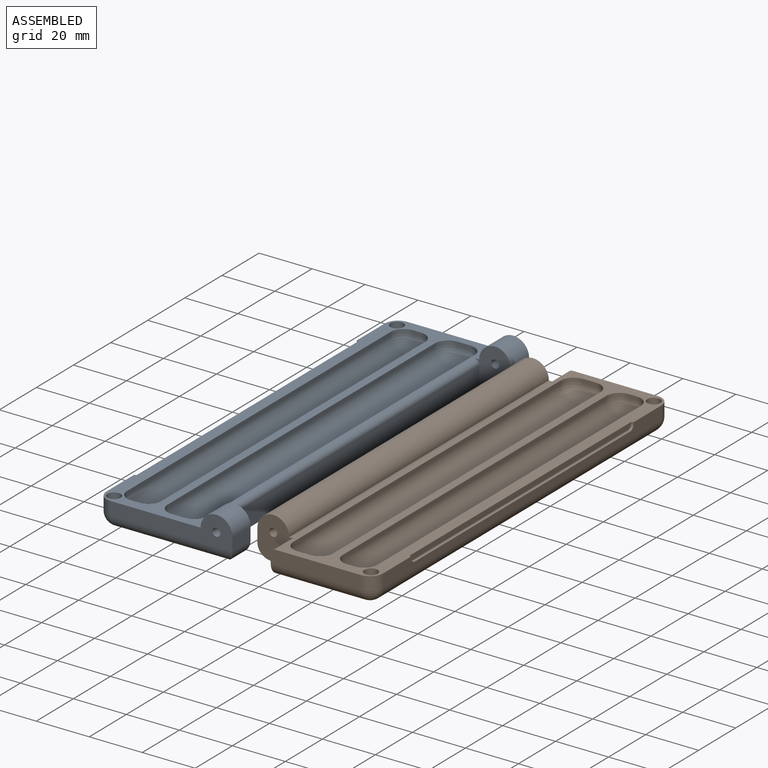
[diagram: assembled view]
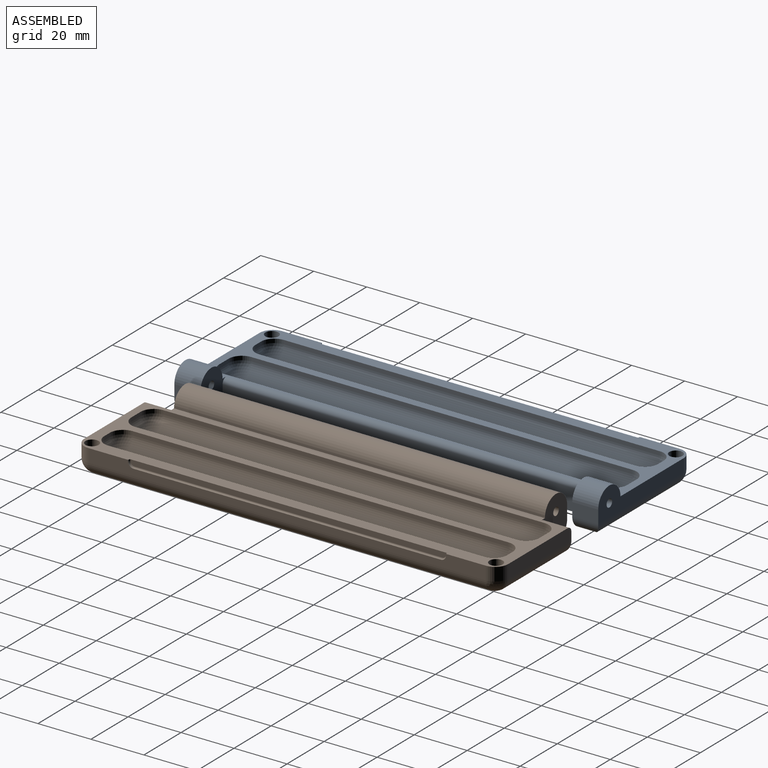
[diagram: assembled view, second angle]
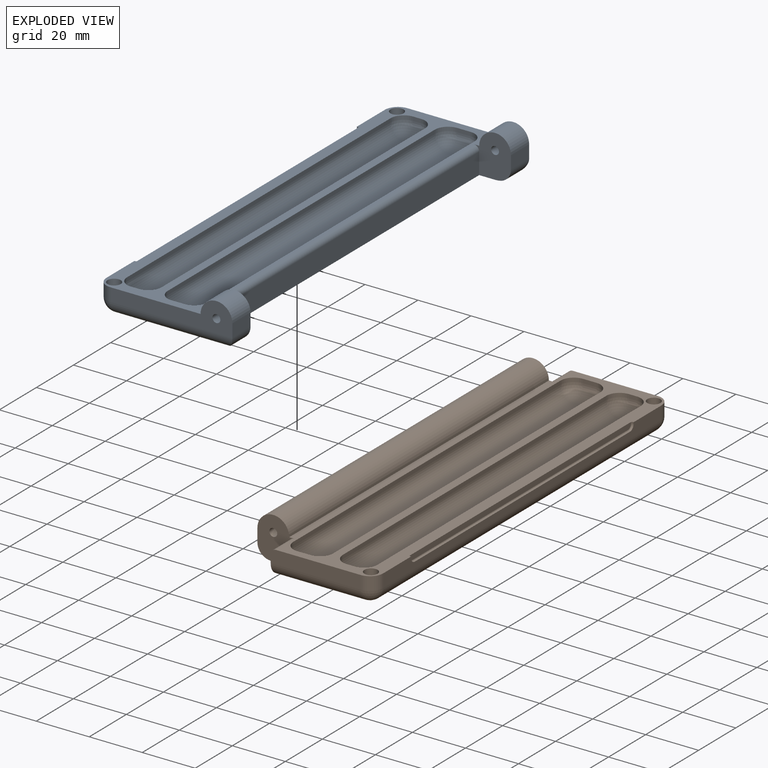
[diagram: exploded view]
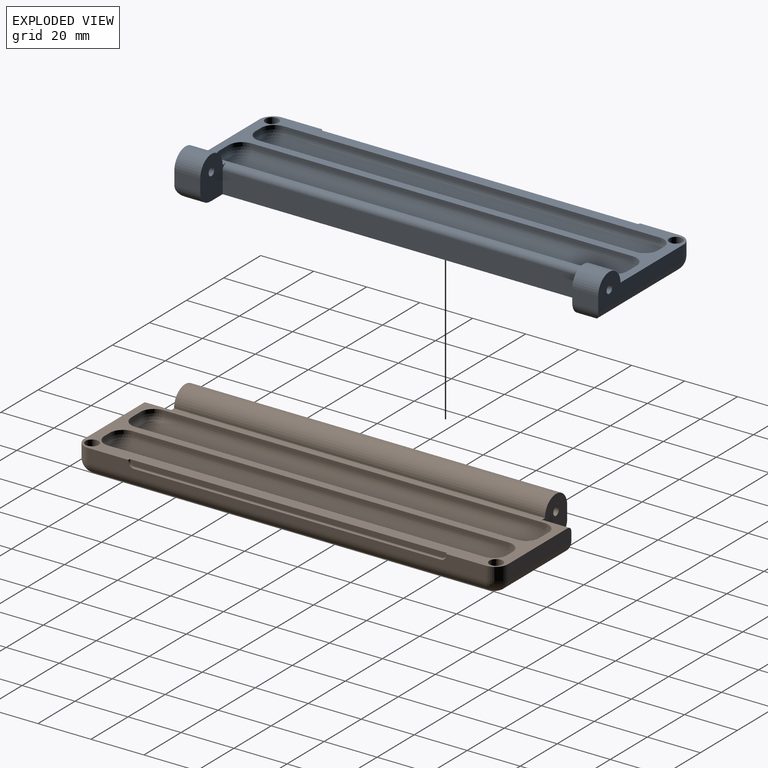
[diagram: exploded view, second angle]
ASSEMBLY  parts=2 mates=2
PART A: 75 faces, bbox 51.1x160x16 mm
  f0: plane 160x39mm, normal (0,0,-1), area 1576.2mm2, adj f1,f3,f5,f6,f7,f9,f10,f11
  f1: plane 150x5mm, normal (1,0,0), area 451.7mm2, adj f0,f55,f60,f61,f62,f63,f64,f71
  f2: cylinder r=10mm len=6.21mm, axis (0,-1,0), area 11.1mm2, adj f5,f8,f54,f57
  f3: plane 46x11mm, normal (0,-1,0), area 279.5mm2, adj f0,f48,f50,f51,f56,f58,f73
  f4: cylinder r=10mm len=6.21mm, axis (0,-1,0), area 11.1mm2, adj f6,f8,f56,f58
  f5: plane 16x14mm, normal (0,-1,0), area 164.5mm2, adj f0,f2,f8,f47,f49,f52,f53,f57
  f6: plane 16x14mm, normal (0,1,0), area 164.5mm2, adj f0,f4,f8,f47,f48,f50,f51,f58
  f7: plane 46x11mm, normal (0,1,0), area 279.5mm2, adj f0,f49,f52,f53,f54,f57,f71
  f8: plane 150x40mm, normal (0,0,1), area 5157.6mm2, adj f2,f4,f5,f6,f47,f54,f55,f56
  f9: plane 3x1.5mm, normal (0,-1,0), area 4.5mm2, adj f0,f21,f27,f30
  f10: plane 142x1.5mm, normal (1,0,0), area 213mm2, adj f0,f24,f28,f30
  f11: plane 3x1.5mm, normal (0,1,0), area 4.5mm2, adj f0,f19,f23,f24
  f12: plane 142x1.5mm, normal (-1,0,0), area 213mm2, adj f0,f19,f21,f22
  f13: plane 142x3mm, normal (0,0,-1), area 426mm2, adj f22,f23,f27,f28
  f14: plane 5x1.5mm, normal (0,-1,0), area 7.5mm2, adj f0,f36,f40,f42
  f15: plane 144x1.5mm, normal (1,0,0), area 216mm2, adj f0,f31,f35,f36
  f16: plane 5x1.5mm, normal (0,1,0), area 7.5mm2, adj f0,f31,f33,f34
  f17: plane 144x1.5mm, normal (-1,0,0), area 216mm2, adj f0,f33,f39,f42
  f18: plane 144x5mm, normal (0,0,-1), area 720mm2, adj f34,f35,f39,f40
  f19: cylinder r=5mm len=5mm, axis (0,0,-1), area 11.8mm2, adj f0,f11,f12,f20
  f20: sphere r=5mm, area 39.3mm2, adj f19,f22,f23
  f21: cylinder r=5mm len=5mm, axis (0,0,1), area 11.8mm2, adj f0,f9,f12,f25
  f22: cylinder r=5mm len=142mm, axis (0,1,0), area 1115.3mm2, adj f12,f13,f20,f25
  f23: cylinder r=5mm len=5mm, axis (1,0,0), area 23.6mm2, adj f11,f13,f20,f26
  f24: cylinder r=5mm len=5mm, axis (0,0,1), area 11.8mm2, adj f0,f10,f11,f26
  f25: sphere r=5mm, area 39.3mm2, adj f21,f22,f27
  f26: sphere r=5mm, area 39.3mm2, adj f23,f24,f28
  f27: cylinder r=5mm len=5mm, axis (-1,0,0), area 23.6mm2, adj f9,f13,f25,f29
  f28: cylinder r=5mm len=142mm, axis (0,-1,0), area 1115.3mm2, adj f10,f13,f26,f29
  f29: sphere r=5mm, area 39.3mm2, adj f27,f28,f30
  f30: cylinder r=5mm len=5mm, axis (0,0,-1), area 11.8mm2, adj f0,f9,f10,f29
  f31: cylinder r=5mm len=5mm, axis (0,0,1), area 11.8mm2, adj f0,f15,f16,f32
  f32: sphere r=5mm, area 39.3mm2, adj f31,f34,f35
  f33: cylinder r=5mm len=5mm, axis (0,0,-1), area 11.8mm2, adj f0,f16,f17,f37
  f34: cylinder r=5mm len=5mm, axis (1,0,0), area 39.3mm2, adj f16,f18,f32,f37
  f35: cylinder r=5mm len=144mm, axis (0,-1,0), area 1131mm2, adj f15,f18,f32,f38
  f36: cylinder r=5mm len=5mm, axis (0,0,-1), area 11.8mm2, adj f0,f14,f15,f38
  f37: sphere r=5mm, area 39.3mm2, adj f33,f34,f39
  f38: sphere r=5mm, area 39.3mm2, adj f35,f36,f40
  f39: cylinder r=5mm len=144mm, axis (0,1,0), area 1131mm2, adj f17,f18,f37,f41
  f40: cylinder r=5mm len=5mm, axis (-1,0,0), area 39.3mm2, adj f14,f18,f38,f41
  f41: sphere r=5mm, area 39.3mm2, adj f39,f40,f42
  f42: cylinder r=5mm len=5mm, axis (0,0,1), area 11.8mm2, adj f0,f14,f17,f41
  f43: cylinder r=2.5mm len=5mm, axis (0,0,-1), area 50.3mm2, adj f0,f44
  f44: plane 5x5mm, normal (0,0,-1), area 19.6mm2, adj f43
  f45: cylinder r=2.5mm len=5mm, axis (0,0,-1), area 50.3mm2, adj f0,f46
  f46: plane 5x5mm, normal (0,0,-1), area 19.6mm2, adj f45
  f47: plane 140.4x8mm, normal (-1,0,0), area 1123.2mm2, adj f5,f6,f8,f59
  f48: cylinder r=1.5mm len=9.8mm, axis (0,-1,0), area 92.4mm2, adj f3,f6
  f49: cylinder r=1.5mm len=9.8mm, axis (0,-1,0), area 92.4mm2, adj f5,f7
  f50: plane 9.8x4.9mm, normal (-1,0,0), area 48mm2, adj f3,f6,f51,f58
  f51: cylinder r=6mm len=12mm, axis (0,-1,0), area 184.7mm2, adj f0,f3,f6,f50
  f52: cylinder r=6mm len=12mm, axis (0,-1,0), area 184.7mm2, adj f0,f5,f7,f53
  f53: plane 9.8x4.9mm, normal (-1,0,0), area 48mm2, adj f5,f7,f52,f57
  f54: cylinder r=5mm len=46mm, axis (-1,0,0), area 345.3mm2, adj f2,f7,f8,f57,f72
  f55: cylinder r=5mm len=150mm, axis (0,1,0), area 1178.1mm2, adj f1,f8,f72,f74
  f56: cylinder r=5mm len=46mm, axis (1,0,0), area 345.3mm2, adj f3,f4,f8,f58,f74
  f57: cylinder r=5mm len=9.8mm, axis (0,-1,0), area 58.1mm2, adj f2,f5,f7,f53,f54
  f58: cylinder r=5mm len=9.8mm, axis (0,-1,0), area 58.1mm2, adj f3,f4,f6,f50,f56
  f59: cylinder r=2mm len=140.4mm, axis (0,-1,0), area 441.1mm2, adj f0,f5,f6,f47
  f60: plane 0.5x0.25mm, normal (0,1,0), area 0.1mm2, adj f0,f1,f64,f70
  f61: plane 0.5x0.25mm, normal (0,-1,0), area 0.1mm2, adj f0,f1,f62,f66
  f62: cylinder r=2mm len=2mm, axis (1,0,0), area 0.8mm2, adj f1,f61,f63,f67
  f63: plane 116x0.25mm, normal (0,0,-1), area 29mm2, adj f1,f62,f64,f68
  f64: cylinder r=2mm len=2mm, axis (1,0,0), area 0.8mm2, adj f1,f60,f63,f69
  f65: plane 119x2mm, normal (1,0,0), area 237mm2, adj f0,f66,f67,f68,f69,f70
  f66: cylinder r=0.5mm len=0.5mm, axis (0,0,1), area 0.4mm2, adj f0,f61,f65,f67
  f67: torus R=1.5mm, axis (1,0,0), area 2.2mm2, adj f62,f65,f66,f68
  f68: cylinder r=0.5mm len=116mm, axis (0,-1,0), area 91.1mm2, adj f63,f65,f67,f69
  f69: torus R=1.5mm, axis (1,0,0), area 2.2mm2, adj f64,f65,f68,f70
  f70: cylinder r=0.5mm len=0.5mm, axis (0,0,-1), area 0.4mm2, adj f0,f60,f65,f69
  f71: cylinder r=5mm len=5mm, axis (0,0,-1), area 39.3mm2, adj f0,f1,f7,f72
  f72: sphere r=5mm, area 39.3mm2, adj f54,f55,f71
  f73: cylinder r=5mm len=5mm, axis (0,0,1), area 39.3mm2, adj f0,f1,f3,f74
  f74: sphere r=5mm, area 39.3mm2, adj f55,f56,f73
PART B: 72 faces, bbox 51.1x160x16 mm
  f0: plane 160x39mm, normal (0,0,1), area 1817mm2, adj f1,f4,f5,f6,f7,f8,f9,f11
  f1: plane 150x5mm, normal (1,0,0), area 451.7mm2, adj f0,f52,f57,f58,f59,f60,f61,f68
  f2: plane 150x40mm, normal (0,0,-1), area 5940mm2, adj f3,f44,f45,f46,f47,f51,f52,f53
  f3: cylinder r=10mm len=140mm, axis (0,-1,0), area 281.9mm2, adj f2,f45,f47,f54
  f4: plane 34x5mm, normal (0,1,0), area 169.1mm2, adj f0,f46,f53,f56,f68
  f5: plane 34x5mm, normal (0,-1,0), area 169.1mm2, adj f0,f44,f51,f55,f70
  f6: plane 3x1.5mm, normal (0,-1,0), area 4.5mm2, adj f0,f18,f24,f27
  f7: plane 142x1.5mm, normal (1,0,0), area 213mm2, adj f0,f21,f25,f27
  f8: plane 3x1.5mm, normal (0,1,0), area 4.5mm2, adj f0,f16,f20,f21
  f9: plane 142x1.5mm, normal (-1,0,0), area 213mm2, adj f0,f16,f18,f19
  f10: plane 142x3mm, normal (0,0,1), area 426mm2, adj f19,f20,f24,f25
  f11: plane 5x1.5mm, normal (0,-1,0), area 7.5mm2, adj f0,f33,f37,f39
  f12: plane 144x1.5mm, normal (1,0,0), area 216mm2, adj f0,f28,f32,f33
  f13: plane 5x1.5mm, normal (0,1,0), area 7.5mm2, adj f0,f28,f30,f31
  f14: plane 144x1.5mm, normal (-1,0,0), area 216mm2, adj f0,f30,f36,f39
  f15: plane 144x5mm, normal (0,0,1), area 720mm2, adj f31,f32,f36,f37
  f16: cylinder r=5mm len=5mm, axis (0,0,1), area 11.8mm2, adj f0,f8,f9,f17
  f17: sphere r=5mm, area 39.3mm2, adj f16,f19,f20
  f18: cylinder r=5mm len=5mm, axis (0,0,-1), area 11.8mm2, adj f0,f6,f9,f22
  f19: cylinder r=5mm len=142mm, axis (0,1,0), area 1115.3mm2, adj f9,f10,f17,f22
  f20: cylinder r=5mm len=5mm, axis (1,0,0), area 23.6mm2, adj f8,f10,f17,f23
  f21: cylinder r=5mm len=5mm, axis (0,0,-1), area 11.8mm2, adj f0,f7,f8,f23
  f22: sphere r=5mm, area 39.3mm2, adj f18,f19,f24
  f23: sphere r=5mm, area 39.3mm2, adj f20,f21,f25
  f24: cylinder r=5mm len=5mm, axis (-1,0,0), area 23.6mm2, adj f6,f10,f22,f26
  f25: cylinder r=5mm len=142mm, axis (0,-1,0), area 1115.3mm2, adj f7,f10,f23,f26
  f26: sphere r=5mm, area 39.3mm2, adj f24,f25,f27
  f27: cylinder r=5mm len=5mm, axis (0,0,1), area 11.8mm2, adj f0,f6,f7,f26
  f28: cylinder r=5mm len=5mm, axis (0,0,-1), area 11.8mm2, adj f0,f12,f13,f29
  f29: sphere r=5mm, area 39.3mm2, adj f28,f31,f32
  f30: cylinder r=5mm len=5mm, axis (0,0,1), area 11.8mm2, adj f0,f13,f14,f34
  f31: cylinder r=5mm len=5mm, axis (1,0,0), area 39.3mm2, adj f13,f15,f29,f34
  f32: cylinder r=5mm len=144mm, axis (0,-1,0), area 1131mm2, adj f12,f15,f29,f35
  f33: cylinder r=5mm len=5mm, axis (0,0,1), area 11.8mm2, adj f0,f11,f12,f35
  f34: sphere r=5mm, area 39.3mm2, adj f30,f31,f36
  f35: sphere r=5mm, area 39.3mm2, adj f32,f33,f37
  f36: cylinder r=5mm len=144mm, axis (0,1,0), area 1131mm2, adj f14,f15,f34,f38
  f37: cylinder r=5mm len=5mm, axis (-1,0,0), area 39.3mm2, adj f11,f15,f35,f38
  f38: sphere r=5mm, area 39.3mm2, adj f36,f37,f39
  f39: cylinder r=5mm len=5mm, axis (0,0,-1), area 11.8mm2, adj f0,f11,f14,f38
  f40: cylinder r=2.5mm len=5mm, axis (0,0,1), area 50.3mm2, adj f0,f41
  f41: plane 5x5mm, normal (0,0,1), area 19.6mm2, adj f40
  f42: cylinder r=2.5mm len=5mm, axis (0,0,1), area 50.3mm2, adj f0,f43
  f43: plane 5x5mm, normal (0,0,1), area 19.6mm2, adj f42
  f44: plane 10x8mm, normal (-1,0,0), area 74.6mm2, adj f2,f5,f45,f51,f55
  f45: plane 16x14mm, normal (0,-1,0), area 164.5mm2, adj f0,f2,f3,f44,f48,f49,f50,f54
  f46: plane 10x8mm, normal (-1,0,0), area 74.6mm2, adj f2,f4,f47,f53,f56
  f47: plane 16x14mm, normal (0,1,0), area 164.5mm2, adj f0,f2,f3,f46,f48,f49,f50,f54
  f48: cylinder r=1.5mm len=140mm, axis (0,-1,0), area 1319.5mm2, adj f45,f47
  f49: cylinder r=6mm len=140mm, axis (0,-1,0), area 2638.9mm2, adj f0,f45,f47,f50
  f50: plane 140x4.9mm, normal (-1,0,0), area 685.9mm2, adj f45,f47,f49,f54
  f51: cylinder r=5mm len=34mm, axis (1,0,0), area 267mm2, adj f2,f5,f44,f71
  f52: cylinder r=5mm len=150mm, axis (0,1,0), area 1178.1mm2, adj f1,f2,f69,f71
  f53: cylinder r=5mm len=34mm, axis (-1,0,0), area 267mm2, adj f2,f4,f46,f69
  f54: cylinder r=5mm len=140mm, axis (0,-1,0), area 958.6mm2, adj f3,f45,f47,f50
  f55: cylinder r=2mm len=10mm, axis (0,-1,0), area 31.4mm2, adj f0,f5,f44,f45
  f56: cylinder r=2mm len=10mm, axis (0,-1,0), area 31.4mm2, adj f0,f4,f46,f47
  f57: plane 0.5x0.25mm, normal (0,1,0), area 0.1mm2, adj f0,f1,f58,f67
  f58: cylinder r=2mm len=2mm, axis (1,0,0), area 0.8mm2, adj f1,f57,f59,f66
  f59: plane 116x0.25mm, normal (0,0,1), area 29mm2, adj f1,f58,f60,f65
  f60: cylinder r=2mm len=2mm, axis (1,0,0), area 0.8mm2, adj f1,f59,f61,f64
  f61: plane 0.5x0.25mm, normal (0,-1,0), area 0.1mm2, adj f0,f1,f60,f63
  f62: plane 119x2mm, normal (1,0,0), area 237mm2, adj f0,f63,f64,f65,f66,f67
  f63: cylinder r=0.5mm len=0.5mm, axis (0,0,1), area 0.4mm2, adj f0,f61,f62,f64
  f64: torus R=1.5mm, axis (1,0,0), area 2.2mm2, adj f60,f62,f63,f65
  f65: cylinder r=0.5mm len=116mm, axis (0,1,0), area 91.1mm2, adj f59,f62,f64,f66
  f66: torus R=1.5mm, axis (1,0,0), area 2.2mm2, adj f58,f62,f65,f67
  f67: cylinder r=0.5mm len=0.5mm, axis (0,0,-1), area 0.4mm2, adj f0,f57,f62,f66
  f68: cylinder r=5mm len=5mm, axis (0,0,1), area 39.3mm2, adj f0,f1,f4,f69
  f69: sphere r=5mm, area 39.3mm2, adj f52,f53,f68
  f70: cylinder r=5mm len=5mm, axis (0,0,-1), area 39.3mm2, adj f0,f1,f5,f71
  f71: sphere r=5mm, area 39.3mm2, adj f51,f52,f70
PLACE A rot(axis=(0,-1,0),180deg) t=(-24.59,-121.3,-18.69)mm
PLACE B t=(24.88,-121.3,-38.69)mm
MATE planar B.f2 <-> A.f8  axis (0,0,-1) through (27.55,-121.3,-38.69)mm
MATE planar B.f45 <-> A.f57  axis (0,-1,0) through (7.58,-191.3,-31.15)mm
